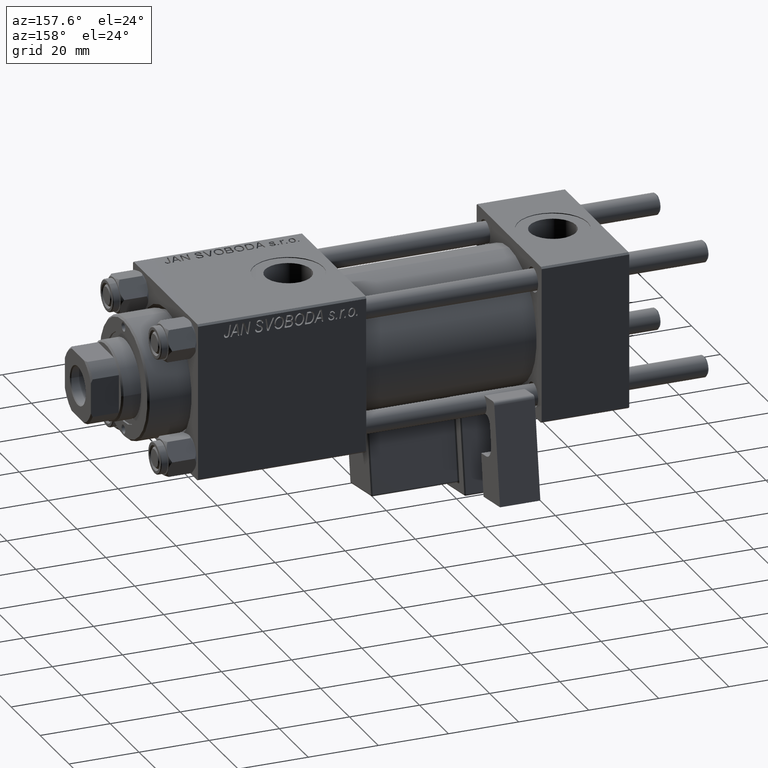
[diagram: clean part render]
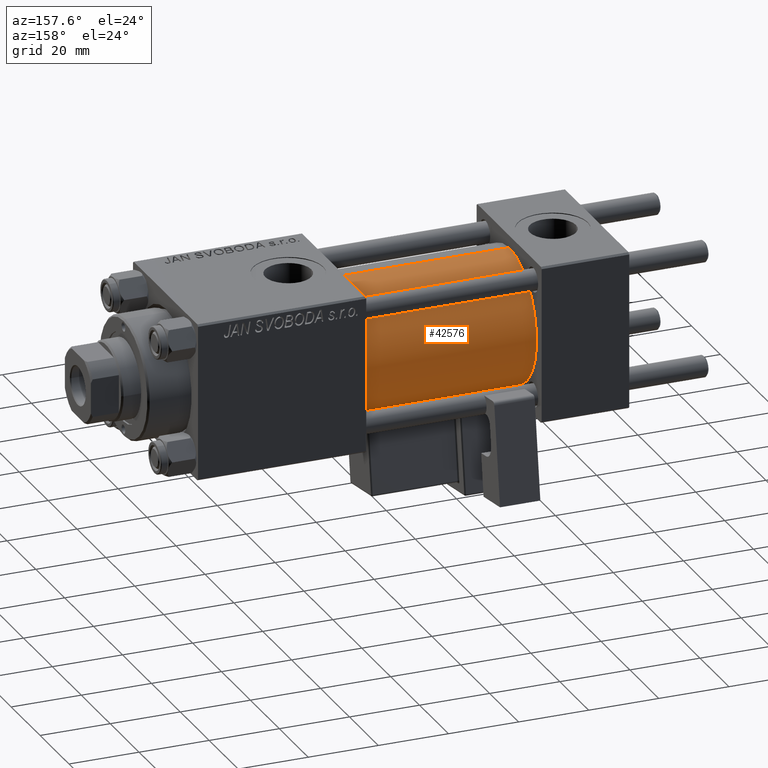
[diagram: same view with one face highlighted and labeled with its STEP entity id]
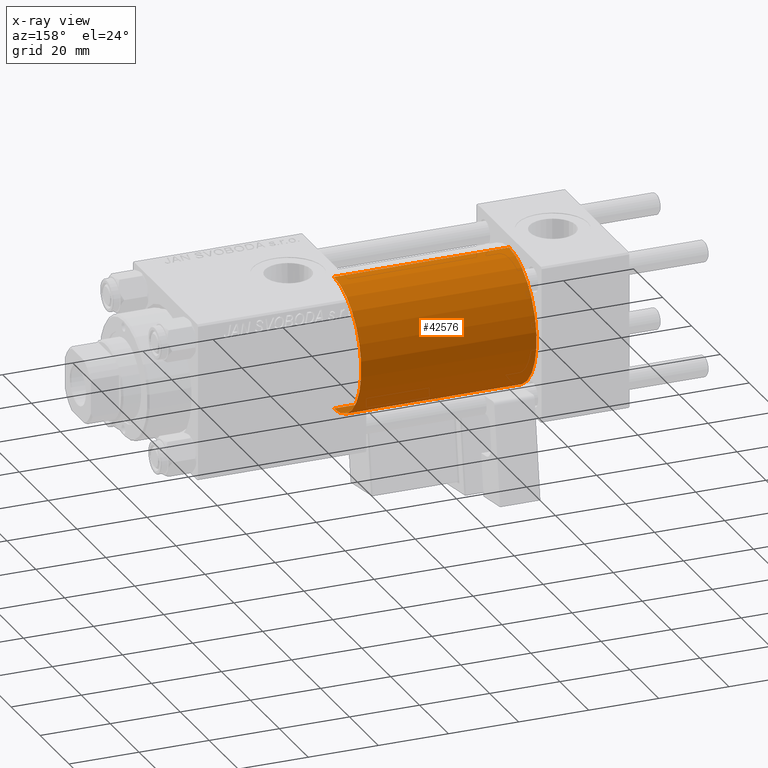
[diagram: x-ray of the same camera — body ghosted, the highlighted face saturated]
A machine part, auxiliary view. The second image highlights one B-rep face of the part: STEP entity #42576.
The next image is the same camera in x-ray: the body ghosted, the highlighted face saturated — about 0% of this face is hidden behind the body in this view.
In plain terms, the highlighted cylindrical surface (partial cylindrical patch) has radius 19 mm, axis along (-1, -0, -0).
Its self-contained STEP definition (entity closure, byte-faithful):
#442 = DIRECTION ( 'NONE',  ( 1.000000000000000000, 0.000000000000000000, 0.000000000000000000 ) ) ;
#5421 = ORIENTED_EDGE ( 'NONE', *, *, #29867, .T. ) ;
#5924 = EDGE_LOOP ( 'NONE', ( #43740, #5421, #33932, #47155 ) ) ;
#6537 = CARTESIAN_POINT ( 'NONE',  ( 75.00000000000001421, 0.000000000000000000, 19.00000000000000000 ) ) ;
#7090 = CARTESIAN_POINT ( 'NONE',  ( 75.00000000000001421, 2.326828918379970970E-15, -19.00000000000000000 ) ) ;
#8030 = CARTESIAN_POINT ( 'NONE',  ( 25.00000000000000000, 0.000000000000000000, 0.000000000000000000 ) ) ;
#8927 = CARTESIAN_POINT ( 'NONE',  ( 75.00000000000001421, 0.000000000000000000, 0.000000000000000000 ) ) ;
#11325 = CARTESIAN_POINT ( 'NONE',  ( 75.00000000000001421, 0.000000000000000000, 19.00000000000000000 ) ) ;
#14065 = VERTEX_POINT ( 'NONE', #7090 ) ;
#17095 = DIRECTION ( 'NONE',  ( -1.000000000000000000, -0.000000000000000000, -0.000000000000000000 ) ) ;
#17151 = VECTOR ( 'NONE', #52024, 1000.000000000000000 ) ;
#17300 = CIRCLE ( 'NONE', #43480, 19.00000000000000000 ) ;
#18463 = EDGE_CURVE ( 'NONE', #47657, #31386, #31382, .T. ) ;
#21053 = CYLINDRICAL_SURFACE ( 'NONE', #41746, 19.00000000000000000 ) ;
#22512 = EDGE_CURVE ( 'NONE', #26821, #31386, #17300, .T. ) ;
#25004 = DIRECTION ( 'NONE',  ( 0.000000000000000000, 0.000000000000000000, 1.000000000000000000 ) ) ;
#26821 = VERTEX_POINT ( 'NONE', #41539 ) ;
#27234 = CARTESIAN_POINT ( 'NONE',  ( 75.00000000000001421, 2.326828918379970970E-15, -19.00000000000000000 ) ) ;
#27852 = VECTOR ( 'NONE', #31206, 1000.000000000000000 ) ;
#29867 = EDGE_CURVE ( 'NONE', #14065, #26821, #34930, .T. ) ;
#31206 = DIRECTION ( 'NONE',  ( -1.000000000000000000, -0.000000000000000000, -0.000000000000000000 ) ) ;
#31382 = LINE ( 'NONE', #11325, #17151 ) ;
#31386 = VERTEX_POINT ( 'NONE', #46069 ) ;
#32669 = CARTESIAN_POINT ( 'NONE',  ( 75.00000000000001421, 0.000000000000000000, 0.000000000000000000 ) ) ;
#33932 = ORIENTED_EDGE ( 'NONE', *, *, #22512, .T. ) ;
#34930 = LINE ( 'NONE', #27234, #27852 ) ;
#35022 = AXIS2_PLACEMENT_3D ( 'NONE', #32669, #442, #49073 ) ;
#41539 = CARTESIAN_POINT ( 'NONE',  ( 25.00000000000000000, 2.326828918379970970E-15, -19.00000000000000000 ) ) ;
#41746 = AXIS2_PLACEMENT_3D ( 'NONE', #8927, #17095, #25004 ) ;
#42576 = ADVANCED_FACE ( 'NONE', ( #49631 ), #21053, .T. ) ;
#43464 = CIRCLE ( 'NONE', #35022, 19.00000000000000000 ) ;
#43480 = AXIS2_PLACEMENT_3D ( 'NONE', #8030, #43693, #52165 ) ;
#43693 = DIRECTION ( 'NONE',  ( 1.000000000000000000, -0.000000000000000000, 0.000000000000000000 ) ) ;
#43740 = ORIENTED_EDGE ( 'NONE', *, *, #47052, .F. ) ;
#46069 = CARTESIAN_POINT ( 'NONE',  ( 25.00000000000000000, 0.000000000000000000, 19.00000000000000000 ) ) ;
#47052 = EDGE_CURVE ( 'NONE', #14065, #47657, #43464, .T. ) ;
#47155 = ORIENTED_EDGE ( 'NONE', *, *, #18463, .F. ) ;
#47657 = VERTEX_POINT ( 'NONE', #6537 ) ;
#49073 = DIRECTION ( 'NONE',  ( 0.000000000000000000, 0.000000000000000000, -1.000000000000000000 ) ) ;
#49631 = FACE_OUTER_BOUND ( 'NONE', #5924, .T. ) ;
#52024 = DIRECTION ( 'NONE',  ( -1.000000000000000000, -0.000000000000000000, -0.000000000000000000 ) ) ;
#52165 = DIRECTION ( 'NONE',  ( 0.000000000000000000, 0.000000000000000000, 1.000000000000000000 ) ) ;